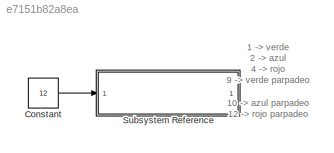
MODEL slx_e7151b82a8ea
KIND model
CONFIG AbsTol = auto
CONFIG EnableMultiTasking = on
CONFIG FixedStep = auto
CONFIG MaxStep = auto
CONFIG MinStep = auto
CONFIG RelTol = 1e-3
CONFIG SampleTimeConstraint = Unconstrained
CONFIG SolverName = FixedStepAuto
CONFIG StartTime = 0.0
CONFIG StopTime = inf
BLOCK [Constant] Constant
  OutDataTypeStr = uint8
  Value = 12
BLOCK [SubSystem] Subsystem Reference
  ReferencedSubsystem = LedsBitsDJ
ANNOTATION (root): 1 -> verde 2 -> azul 4 -> rojo 9 -> verde parpadeo 10 -> azul parpadeo 12 -> rojo parpadeo
LINE Constant:1 -> Subsystem Reference:1
